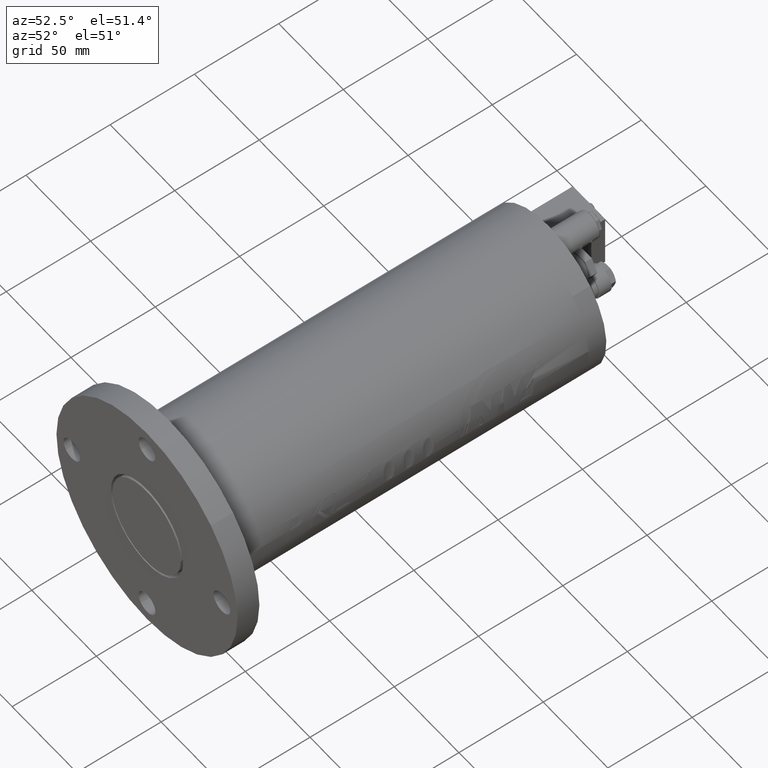
[diagram: clean part render]
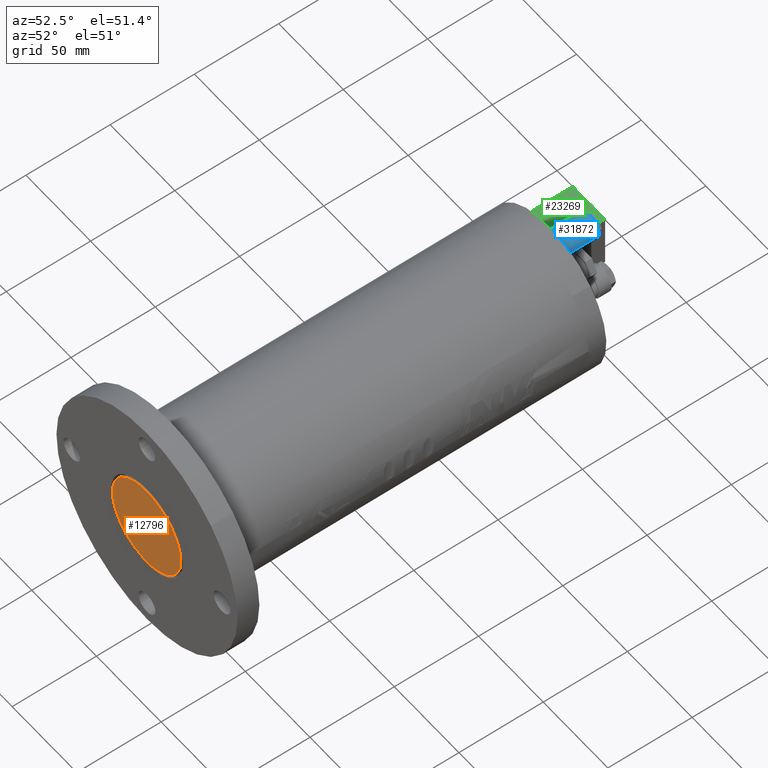
[diagram: same view with three faces highlighted in distinct colors, each labeled with its STEP entity id]
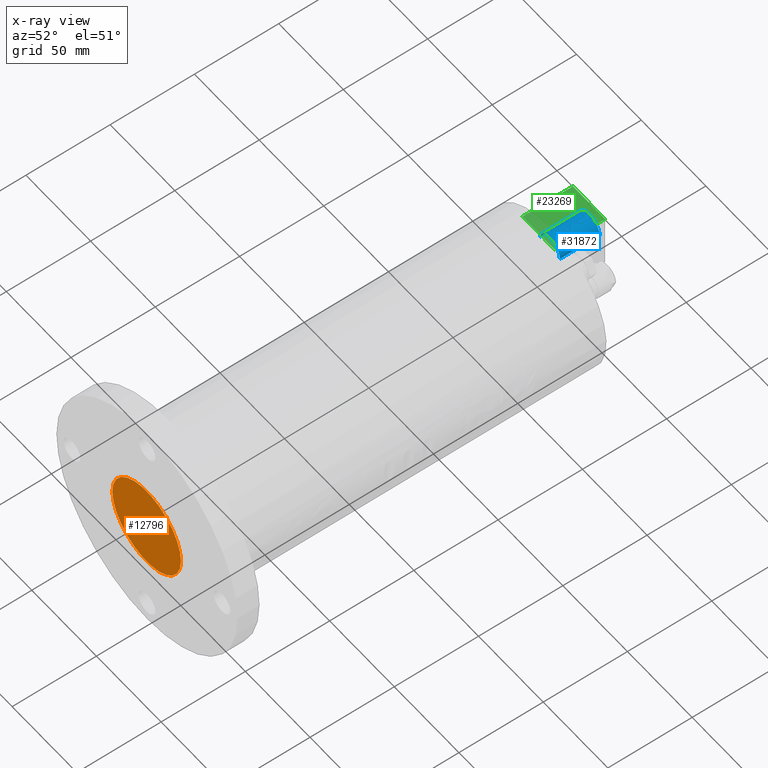
[diagram: x-ray of the same camera — body ghosted, the three highlighted faces saturated]
A machine part, auxiliary view with three faces highlighted in distinct colors.
The next image is the same camera in x-ray (body ghosted, the three faces saturated) — at least one of them is partly hidden behind the body in this view.
Their STEP definitions:

[orange] entity #12796 — the highlighted planar face has unit normal (-0, 1, 0).
#1196 = EDGE_CURVE ( 'NONE', #14291, #13369, #7146, .T. ) ;
#1732 = CARTESIAN_POINT ( 'NONE',  ( 1.387778780781445700E-014, -20.20000000000002400, 0.0000000000000000000 ) ) ;
#2172 = PLANE ( 'NONE',  #15577 ) ;
#5193 = CIRCLE ( 'NONE', #26578, 26.50000000000000000 ) ;
#5488 = DIRECTION ( 'NONE',  ( -3.742959279103802900E-033, 1.000000000000000000, 0.0000000000000000000 ) ) ;
#5728 = ORIENTED_EDGE ( 'NONE', *, *, #41948, .T. ) ;
#5770 = ORIENTED_EDGE ( 'NONE', *, *, #1196, .T. ) ;
#7146 = CIRCLE ( 'NONE', #26431, 26.50000000000000000 ) ;
#8774 = DIRECTION ( 'NONE',  ( 3.742959279103802900E-033, -1.000000000000000000, -0.0000000000000000000 ) ) ;
#12026 = CARTESIAN_POINT ( 'NONE',  ( 26.50000000000001400, -20.20000000000002400, 0.0000000000000000000 ) ) ;
#12243 = CARTESIAN_POINT ( 'NONE',  ( 1.387778780781445700E-014, -20.20000000000002400, 0.0000000000000000000 ) ) ;
#12796 = ADVANCED_FACE ( 'NONE', ( #23787 ), #2172, .F. ) ;
#13369 = VERTEX_POINT ( 'NONE', #12026 ) ;
#14291 = VERTEX_POINT ( 'NONE', #33789 ) ;
#15577 = AXIS2_PLACEMENT_3D ( 'NONE', #12243, #5488, #31691 ) ;
#18438 = EDGE_LOOP ( 'NONE', ( #5728, #5770 ) ) ;
#23787 = FACE_OUTER_BOUND ( 'NONE', #18438, .T. ) ;
#25334 = DIRECTION ( 'NONE',  ( 1.000000000000000000, 0.0000000000000000000, 0.0000000000000000000 ) ) ;
#26431 = AXIS2_PLACEMENT_3D ( 'NONE', #1732, #41356, #34565 ) ;
#26578 = AXIS2_PLACEMENT_3D ( 'NONE', #35142, #8774, #25334 ) ;
#31691 = DIRECTION ( 'NONE',  ( -1.000000000000000000, -3.742959279103802900E-033, 0.0000000000000000000 ) ) ;
#33789 = CARTESIAN_POINT ( 'NONE',  ( -26.49999999999998600, -20.20000000000002400, 3.245314017740485800E-015 ) ) ;
#34565 = DIRECTION ( 'NONE',  ( 1.000000000000000000, 0.0000000000000000000, 0.0000000000000000000 ) ) ;
#35142 = CARTESIAN_POINT ( 'NONE',  ( 1.387778780781445700E-014, -20.20000000000002400, 0.0000000000000000000 ) ) ;
#41356 = DIRECTION ( 'NONE',  ( 3.742959279103802900E-033, -1.000000000000000000, -0.0000000000000000000 ) ) ;
#41948 = EDGE_CURVE ( 'NONE', #13369, #14291, #5193, .T. ) ;

[blue] entity #31872 — the highlighted cylindrical surface (edge-blend (fillet) strip) has radius 7.75 mm, axis along (-0, -1, 0).
#11 = ORIENTED_EDGE ( 'NONE', *, *, #28796, .F. ) ;
#653 = DIRECTION ( 'NONE',  ( 6.840305812694026900E-017, 1.000000000000000000, -3.159273835260919100E-016 ) ) ;
#733 = VERTEX_POINT ( 'NONE', #26700 ) ;
#1240 = CARTESIAN_POINT ( 'NONE',  ( 7.718915073174324300, 219.0000000000000000, 26.80656644649440100 ) ) ;
#1688 = VECTOR ( 'NONE', #17537, 1000.000000000000000 ) ;
#1716 = VERTEX_POINT ( 'NONE', #11865 ) ;
#2410 = EDGE_CURVE ( 'NONE', #35775, #21765, #39063, .T. ) ;
#3910 = CIRCLE ( 'NONE', #5231, 7.750000000000003600 ) ;
#4183 = CARTESIAN_POINT ( 'NONE',  ( -7.718915073173658200, 238.5000000000000300, 28.19343355350559200 ) ) ;
#4356 = DIRECTION ( 'NONE',  ( -6.840305812694026900E-017, -1.000000000000000000, 3.159273835260919100E-016 ) ) ;
#4370 = LINE ( 'NONE', #24985, #26083 ) ;
#4609 = EDGE_CURVE ( 'NONE', #20882, #35775, #3910, .T. ) ;
#4629 = CARTESIAN_POINT ( 'NONE',  ( 7.718915073174327900, 243.0000000000000300, 26.80656644649440400 ) ) ;
#5200 = DIRECTION ( 'NONE',  ( 6.840305812694026900E-017, 1.000000000000000000, -3.159273835260919100E-016 ) ) ;
#5215 = CARTESIAN_POINT ( 'NONE',  ( -7.718915073173665300, 226.5000000000000000, 28.19343355350559600 ) ) ;
#5231 = AXIS2_PLACEMENT_3D ( 'NONE', #36997, #30356, #10648 ) ;
#5328 = VECTOR ( 'NONE', #5755, 1000.000000000000000 ) ;
#5504 = VERTEX_POINT ( 'NONE', #33893 ) ;
#5524 = FACE_OUTER_BOUND ( 'NONE', #17700, .T. ) ;
#5741 = LINE ( 'NONE', #11599, #21730 ) ;
#5755 = DIRECTION ( 'NONE',  ( -6.840305812694026900E-017, -1.000000000000000000, 3.159273835260919100E-016 ) ) ;
#6400 = VECTOR ( 'NONE', #16114, 1000.000000000000000 ) ;
#6765 = ORIENTED_EDGE ( 'NONE', *, *, #18112, .F. ) ;
#7166 = LINE ( 'NONE', #33066, #35551 ) ;
#7280 = EDGE_CURVE ( 'NONE', #733, #20278, #4370, .T. ) ;
#7804 = EDGE_CURVE ( 'NONE', #20278, #36329, #23475, .T. ) ;
#8857 = CARTESIAN_POINT ( 'NONE',  ( 7.718915073174333200, 242.5000000000000300, 26.80656644649440100 ) ) ;
#8943 = DIRECTION ( 'NONE',  ( 0.9959890416998694600, 0.0000000000000000000, -0.08947529722652844400 ) ) ;
#9398 = EDGE_CURVE ( 'NONE', #20882, #5504, #31694, .T. ) ;
#9766 = VERTEX_POINT ( 'NONE', #31471 ) ;
#10041 = VERTEX_POINT ( 'NONE', #5215 ) ;
#10161 = DIRECTION ( 'NONE',  ( -6.840305812694026900E-017, -1.000000000000000000, 3.159273835260919100E-016 ) ) ;
#10597 = ORIENTED_EDGE ( 'NONE', *, *, #7280, .T. ) ;
#10648 = DIRECTION ( 'NONE',  ( 0.9959890416998694600, 0.0000000000000000000, -0.08947529722652844400 ) ) ;
#10672 = EDGE_CURVE ( 'NONE', #10844, #33526, #32650, .T. ) ;
#10844 = VERTEX_POINT ( 'NONE', #42540 ) ;
#10857 = CARTESIAN_POINT ( 'NONE',  ( -7.718915073173652000, 230.5000000000000000, 28.19343355350558500 ) ) ;
#10992 = VERTEX_POINT ( 'NONE', #22081 ) ;
#11014 = CARTESIAN_POINT ( 'NONE',  ( -7.718915073173646700, 243.0000000000000300, 28.19343355350559200 ) ) ;
#11245 = DIRECTION ( 'NONE',  ( -6.840305812694026900E-017, -1.000000000000000000, 3.159273835260919100E-016 ) ) ;
#11599 = CARTESIAN_POINT ( 'NONE',  ( 7.718915073174327900, 243.0000000000000300, 26.80656644649440400 ) ) ;
#11865 = CARTESIAN_POINT ( 'NONE',  ( 7.718915073174332300, 236.5000000000000300, 26.80656644649439400 ) ) ;
#11946 = LINE ( 'NONE', #4629, #36664 ) ;
#12501 = LINE ( 'NONE', #30910, #1688 ) ;
#13363 = EDGE_CURVE ( 'NONE', #24230, #30206, #5741, .T. ) ;
#14086 = LINE ( 'NONE', #33488, #36271 ) ;
#14679 = CARTESIAN_POINT ( 'NONE',  ( 7.718915073174326100, 230.5000000000000000, 26.80656644649439700 ) ) ;
#14692 = EDGE_CURVE ( 'NONE', #5504, #1716, #11946, .T. ) ;
#15537 = VECTOR ( 'NONE', #38396, 1000.000000000000000 ) ;
#16114 = DIRECTION ( 'NONE',  ( 6.840305812694026900E-017, 1.000000000000000000, -3.159273835260919100E-016 ) ) ;
#16156 = EDGE_CURVE ( 'NONE', #9766, #10992, #38194, .T. ) ;
#16691 = CARTESIAN_POINT ( 'NONE',  ( 7.718915073174336800, 243.0000000000000300, 26.80656644649439700 ) ) ;
#16754 = ORIENTED_EDGE ( 'NONE', *, *, #39632, .T. ) ;
#17537 = DIRECTION ( 'NONE',  ( -6.840305812694026900E-017, -1.000000000000000000, 3.159273835260919100E-016 ) ) ;
#17652 = AXIS2_PLACEMENT_3D ( 'NONE', #28388, #24685, #31574 ) ;
#17700 = EDGE_LOOP ( 'NONE', ( #23497, #22378, #20778, #29720, #25030, #11, #26103, #16754, #10597, #35761, #6765, #31355, #40496, #24970, #33610, #33256 ) ) ;
#18112 = EDGE_CURVE ( 'NONE', #24230, #36329, #7166, .T. ) ;
#18341 = CARTESIAN_POINT ( 'NONE',  ( 7.718915073174325200, 224.5000000000000000, 26.80656644649440100 ) ) ;
#18543 = CARTESIAN_POINT ( 'NONE',  ( -7.718915073173652900, 219.0000000000000000, 28.19343355350559600 ) ) ;
#19083 = DIRECTION ( 'NONE',  ( 6.840305812694026900E-017, 1.000000000000000000, -3.159273835260919100E-016 ) ) ;
#20278 = VERTEX_POINT ( 'NONE', #18543 ) ;
#20778 = ORIENTED_EDGE ( 'NONE', *, *, #2410, .T. ) ;
#20821 = EDGE_CURVE ( 'NONE', #21372, #10041, #38230, .T. ) ;
#20882 = VERTEX_POINT ( 'NONE', #8857 ) ;
#21036 = VECTOR ( 'NONE', #23994, 1000.000000000000000 ) ;
#21065 = CARTESIAN_POINT ( 'NONE',  ( -7.718915073173646700, 243.0000000000000300, 28.19343355350559200 ) ) ;
#21372 = VERTEX_POINT ( 'NONE', #10857 ) ;
#21730 = VECTOR ( 'NONE', #19083, 1000.000000000000000 ) ;
#21765 = VERTEX_POINT ( 'NONE', #4183 ) ;
#21794 = CARTESIAN_POINT ( 'NONE',  ( 7.718915073174336800, 243.0000000000000300, 26.80656644649439700 ) ) ;
#21821 = CARTESIAN_POINT ( 'NONE',  ( -7.718915073173646700, 243.0000000000000300, 28.19343355350559200 ) ) ;
#21882 = CARTESIAN_POINT ( 'NONE',  ( -7.718915073173658200, 243.0000000000000300, 28.19343355350558500 ) ) ;
#22081 = CARTESIAN_POINT ( 'NONE',  ( -7.718915073173659100, 232.5000000000000000, 28.19343355350558500 ) ) ;
#22199 = VECTOR ( 'NONE', #4356, 1000.000000000000000 ) ;
#22378 = ORIENTED_EDGE ( 'NONE', *, *, #4609, .T. ) ;
#22969 = AXIS2_PLACEMENT_3D ( 'NONE', #24793, #5200, #8943 ) ;
#23475 = CIRCLE ( 'NONE', #22969, 7.750000000000003600 ) ;
#23497 = ORIENTED_EDGE ( 'NONE', *, *, #9398, .F. ) ;
#23994 = DIRECTION ( 'NONE',  ( -6.840305812694026900E-017, -1.000000000000000000, 3.159273835260919100E-016 ) ) ;
#24230 = VERTEX_POINT ( 'NONE', #18341 ) ;
#24583 = LINE ( 'NONE', #21794, #41099 ) ;
#24647 = CARTESIAN_POINT ( 'NONE',  ( -7.718915073173643100, 242.5000000000000300, 28.19343355350559600 ) ) ;
#24685 = DIRECTION ( 'NONE',  ( -6.840305812694026900E-017, -1.000000000000000000, 3.159273835260919100E-016 ) ) ;
#24793 = CARTESIAN_POINT ( 'NONE',  ( 3.362089476371403400E-013, 219.0000000000000000, 27.50000000000000700 ) ) ;
#24963 = LINE ( 'NONE', #21882, #6400 ) ;
#24970 = ORIENTED_EDGE ( 'NONE', *, *, #10672, .F. ) ;
#24985 = CARTESIAN_POINT ( 'NONE',  ( -7.718915073173646700, 243.0000000000000300, 28.19343355350559200 ) ) ;
#25030 = ORIENTED_EDGE ( 'NONE', *, *, #16156, .T. ) ;
#25112 = DIRECTION ( 'NONE',  ( -6.840305812694026900E-017, -1.000000000000000000, 3.159273835260919100E-016 ) ) ;
#25493 = CARTESIAN_POINT ( 'NONE',  ( 7.718915073174327900, 243.0000000000000300, 26.80656644649440400 ) ) ;
#26083 = VECTOR ( 'NONE', #28693, 1000.000000000000000 ) ;
#26103 = ORIENTED_EDGE ( 'NONE', *, *, #20821, .T. ) ;
#26700 = CARTESIAN_POINT ( 'NONE',  ( -7.718915073173638700, 224.5000000000000000, 28.19343355350558900 ) ) ;
#28388 = CARTESIAN_POINT ( 'NONE',  ( 3.450682279569133600E-013, 243.0000000000000300, 27.49999999999999600 ) ) ;
#28693 = DIRECTION ( 'NONE',  ( -6.840305812694026900E-017, -1.000000000000000000, 3.159273835260919100E-016 ) ) ;
#28796 = EDGE_CURVE ( 'NONE', #21372, #10992, #24963, .T. ) ;
#29720 = ORIENTED_EDGE ( 'NONE', *, *, #37598, .F. ) ;
#30206 = VERTEX_POINT ( 'NONE', #39079 ) ;
#30356 = DIRECTION ( 'NONE',  ( -6.840305812694026900E-017, -1.000000000000000000, 3.159273835260919100E-016 ) ) ;
#30646 = VECTOR ( 'NONE', #36390, 1000.000000000000000 ) ;
#30910 = CARTESIAN_POINT ( 'NONE',  ( -7.718915073173658200, 243.0000000000000300, 28.19343355350558500 ) ) ;
#31188 = VECTOR ( 'NONE', #36576, 1000.000000000000000 ) ;
#31355 = ORIENTED_EDGE ( 'NONE', *, *, #13363, .T. ) ;
#31471 = CARTESIAN_POINT ( 'NONE',  ( -7.718915073173651100, 236.5000000000000300, 28.19343355350559200 ) ) ;
#31574 = DIRECTION ( 'NONE',  ( -0.9959890416998694600, 0.0000000000000000000, 0.08947529722652844400 ) ) ;
#31694 = LINE ( 'NONE', #40003, #30646 ) ;
#31812 = CYLINDRICAL_SURFACE ( 'NONE', #17652, 7.750000000000003600 ) ;
#31872 = ADVANCED_FACE ( 'NONE', ( #5524 ), #31812, .T. ) ;
#31971 = EDGE_CURVE ( 'NONE', #1716, #10844, #24583, .T. ) ;
#32650 = LINE ( 'NONE', #25493, #5328 ) ;
#33066 = CARTESIAN_POINT ( 'NONE',  ( 7.718915073174336800, 243.0000000000000300, 26.80656644649439700 ) ) ;
#33256 = ORIENTED_EDGE ( 'NONE', *, *, #14692, .F. ) ;
#33488 = CARTESIAN_POINT ( 'NONE',  ( -7.718915073173658200, 243.0000000000000300, 28.19343355350558500 ) ) ;
#33526 = VERTEX_POINT ( 'NONE', #14679 ) ;
#33610 = ORIENTED_EDGE ( 'NONE', *, *, #31971, .F. ) ;
#33893 = CARTESIAN_POINT ( 'NONE',  ( 7.718915073174326100, 238.5000000000000300, 26.80656644649439400 ) ) ;
#34723 = EDGE_CURVE ( 'NONE', #33526, #30206, #39975, .T. ) ;
#35551 = VECTOR ( 'NONE', #10161, 1000.000000000000000 ) ;
#35761 = ORIENTED_EDGE ( 'NONE', *, *, #7804, .T. ) ;
#35775 = VERTEX_POINT ( 'NONE', #24647 ) ;
#36271 = VECTOR ( 'NONE', #653, 1000.000000000000000 ) ;
#36329 = VERTEX_POINT ( 'NONE', #1240 ) ;
#36390 = DIRECTION ( 'NONE',  ( -6.840305812694026900E-017, -1.000000000000000000, 3.159273835260919100E-016 ) ) ;
#36576 = DIRECTION ( 'NONE',  ( -6.840305812694026900E-017, -1.000000000000000000, 3.159273835260919100E-016 ) ) ;
#36664 = VECTOR ( 'NONE', #11245, 1000.000000000000000 ) ;
#36997 = CARTESIAN_POINT ( 'NONE',  ( 3.450211727938466500E-013, 242.5000000000000300, 27.49999999999999600 ) ) ;
#37598 = EDGE_CURVE ( 'NONE', #9766, #21765, #14086, .T. ) ;
#38194 = LINE ( 'NONE', #21065, #22199 ) ;
#38230 = LINE ( 'NONE', #21821, #15537 ) ;
#38396 = DIRECTION ( 'NONE',  ( -6.840305812694026900E-017, -1.000000000000000000, 3.159273835260919100E-016 ) ) ;
#39063 = LINE ( 'NONE', #11014, #21036 ) ;
#39079 = CARTESIAN_POINT ( 'NONE',  ( 7.718915073174311900, 226.5000000000000000, 26.80656644649440800 ) ) ;
#39632 = EDGE_CURVE ( 'NONE', #10041, #733, #12501, .T. ) ;
#39975 = LINE ( 'NONE', #16691, #31188 ) ;
#40003 = CARTESIAN_POINT ( 'NONE',  ( 7.718915073174336800, 243.0000000000000300, 26.80656644649439700 ) ) ;
#40496 = ORIENTED_EDGE ( 'NONE', *, *, #34723, .F. ) ;
#41099 = VECTOR ( 'NONE', #25112, 1000.000000000000000 ) ;
#42540 = CARTESIAN_POINT ( 'NONE',  ( 7.718915073174326100, 232.5000000000000000, 26.80656644649439700 ) ) ;

[green] entity #23269 — the highlighted planar face has unit normal (-0, -0, -1).
#650 = ORIENTED_EDGE ( 'NONE', *, *, #8762, .T. ) ;
#2824 = CARTESIAN_POINT ( 'NONE',  ( -34.91329307649820600, 259.5000000000000600, 8.586706923500573300 ) ) ;
#3259 = DIRECTION ( 'NONE',  ( -1.000000000000000000, 6.768147145933128300E-017, 8.326672684688677000E-016 ) ) ;
#4899 = DIRECTION ( 'NONE',  ( 1.000000000000000000, -6.768147145933129500E-017, -8.326672684688678000E-016 ) ) ;
#5227 = CARTESIAN_POINT ( 'NONE',  ( -34.91329307649820600, 259.5000000000000600, 8.586706923500573300 ) ) ;
#5885 = AXIS2_PLACEMENT_3D ( 'NONE', #6160, #16361, #3259 ) ;
#6160 = CARTESIAN_POINT ( 'NONE',  ( -34.91329307649820600, 259.5000000000000600, 8.586706923500573300 ) ) ;
#7361 = LINE ( 'NONE', #31312, #34166 ) ;
#8335 = LINE ( 'NONE', #24333, #42424 ) ;
#8393 = ORIENTED_EDGE ( 'NONE', *, *, #38621, .F. ) ;
#8762 = EDGE_CURVE ( 'NONE', #9473, #35807, #22929, .T. ) ;
#9473 = VERTEX_POINT ( 'NONE', #2824 ) ;
#10652 = LINE ( 'NONE', #5227, #37477 ) ;
#11063 = VECTOR ( 'NONE', #42753, 1000.000000000000000 ) ;
#11349 = FACE_OUTER_BOUND ( 'NONE', #20640, .T. ) ;
#11588 = DIRECTION ( 'NONE',  ( -6.768147145933096200E-017, -1.000000000000000000, 6.465604180077062700E-016 ) ) ;
#16187 = CARTESIAN_POINT ( 'NONE',  ( -34.91329307649820600, 259.5000000000000600, 8.586706923500573300 ) ) ;
#16361 = DIRECTION ( 'NONE',  ( -8.326672684688677000E-016, -6.465604180077061700E-016, -1.000000000000000000 ) ) ;
#17984 = ORIENTED_EDGE ( 'NONE', *, *, #18813, .T. ) ;
#18813 = EDGE_CURVE ( 'NONE', #35807, #20194, #8335, .T. ) ;
#20194 = VERTEX_POINT ( 'NONE', #27872 ) ;
#20640 = EDGE_LOOP ( 'NONE', ( #17984, #8393, #21700, #650 ) ) ;
#21700 = ORIENTED_EDGE ( 'NONE', *, *, #31919, .F. ) ;
#22929 = LINE ( 'NONE', #16187, #11063 ) ;
#23269 = ADVANCED_FACE ( 'NONE', ( #11349 ), #35828, .F. ) ;
#24333 = CARTESIAN_POINT ( 'NONE',  ( -34.91329307649821300, 229.5000000000000300, 8.586706923500594600 ) ) ;
#24823 = DIRECTION ( 'NONE',  ( 1.000000000000000000, -6.768147145933129500E-017, -8.326672684688678000E-016 ) ) ;
#27742 = CARTESIAN_POINT ( 'NONE',  ( -9.913293076498197500, 259.5000000000000600, 8.586706923500601700 ) ) ;
#27872 = CARTESIAN_POINT ( 'NONE',  ( -9.913293076498201000, 229.5000000000000300, 8.586706923500623000 ) ) ;
#30314 = VERTEX_POINT ( 'NONE', #27742 ) ;
#31312 = CARTESIAN_POINT ( 'NONE',  ( -9.913293076498197500, 259.5000000000000600, 8.586706923500601700 ) ) ;
#31919 = EDGE_CURVE ( 'NONE', #9473, #30314, #10652, .T. ) ;
#34166 = VECTOR ( 'NONE', #11588, 1000.000000000000000 ) ;
#34584 = CARTESIAN_POINT ( 'NONE',  ( -34.91329307649821300, 229.5000000000000300, 8.586706923500594600 ) ) ;
#35807 = VERTEX_POINT ( 'NONE', #34584 ) ;
#35828 = PLANE ( 'NONE',  #5885 ) ;
#37477 = VECTOR ( 'NONE', #24823, 1000.000000000000000 ) ;
#38621 = EDGE_CURVE ( 'NONE', #30314, #20194, #7361, .T. ) ;
#42424 = VECTOR ( 'NONE', #4899, 1000.000000000000000 ) ;
#42753 = DIRECTION ( 'NONE',  ( -6.768147145933096200E-017, -1.000000000000000000, 6.465604180077062700E-016 ) ) ;